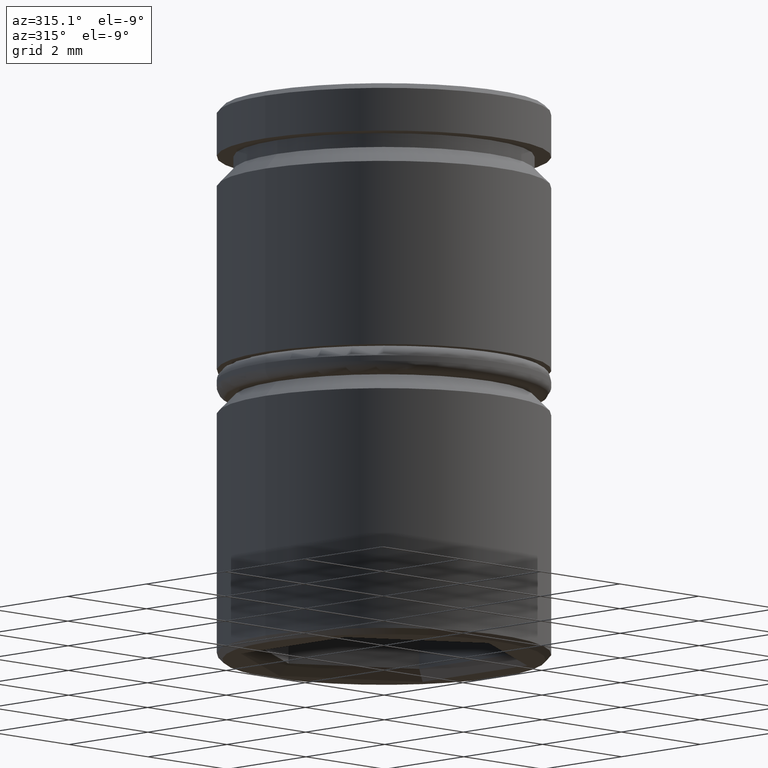
[diagram: clean part render]
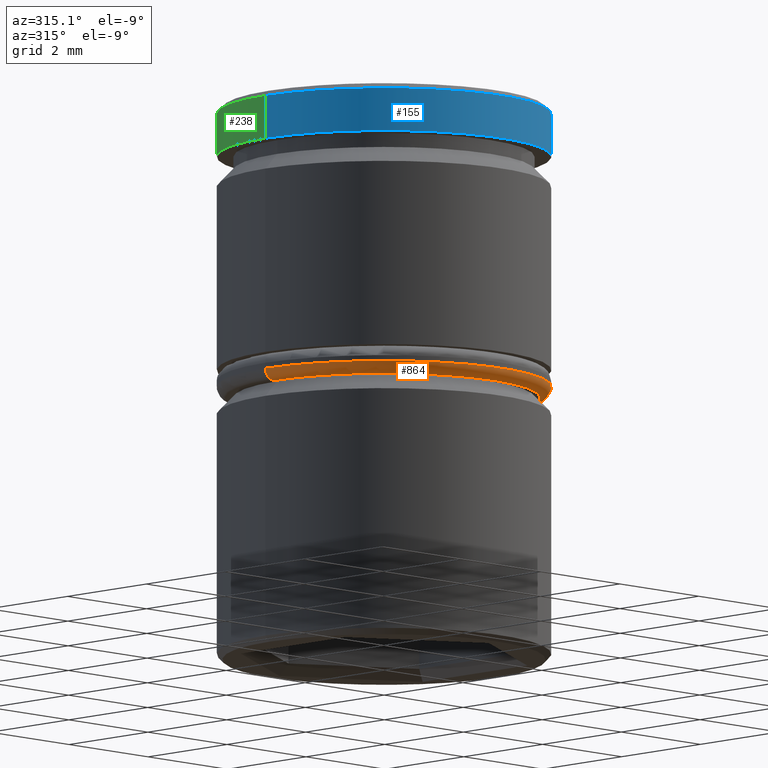
[diagram: same view with three faces highlighted in distinct colors, each labeled with its STEP entity id]
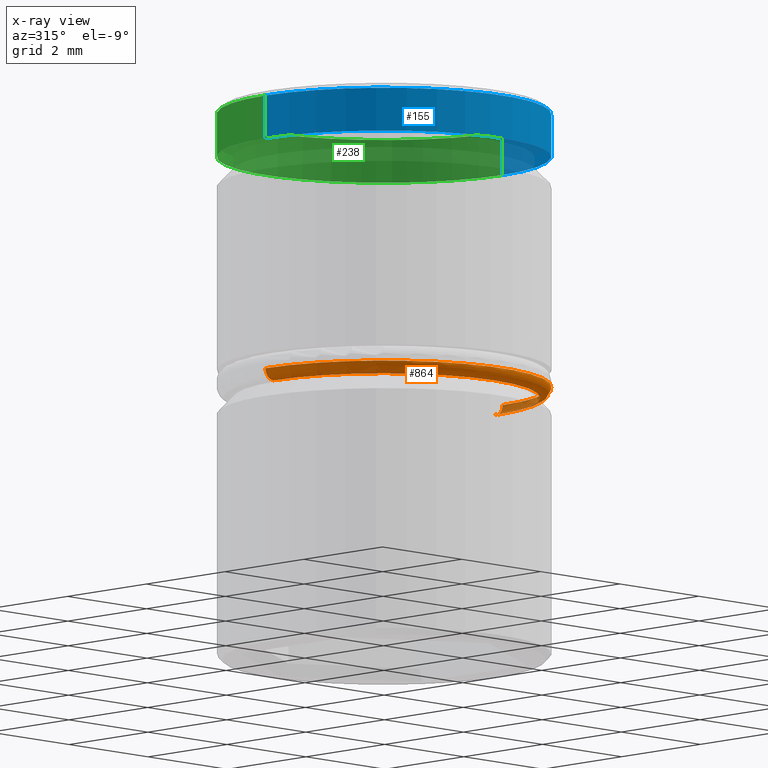
[diagram: x-ray of the same camera — body ghosted, the three highlighted faces saturated]
A machine part, auxiliary view with three faces highlighted in distinct colors.
The next image is the same camera in x-ray (body ghosted, the three faces saturated) — at least one of them is partly hidden behind the body in this view.
Their STEP definitions:

[orange] entity #864 — the highlighted toroidal blend (fillet) surface has major radius 2.8 mm and minor (blend) radius 0.2 mm.
#68 = ORIENTED_EDGE ( 'NONE', *, *, #758, .F. ) ;
#72 = DIRECTION ( 'NONE',  ( 1.000000000000000000, 0.000000000000000000, 0.000000000000000000 ) ) ;
#84 = AXIS2_PLACEMENT_3D ( 'NONE', #880, #149, #1154 ) ;
#88 = CARTESIAN_POINT ( 'NONE',  ( 0.000000000000000000, 0.000000000000000000, -5.049999999999998934 ) ) ;
#149 = DIRECTION ( 'NONE',  ( 0.000000000000000000, -1.000000000000000000, 0.000000000000000000 ) ) ;
#154 = ORIENTED_EDGE ( 'NONE', *, *, #741, .T. ) ;
#160 = TOROIDAL_SURFACE ( 'NONE', #285, 2.800000000000000266, 0.2000000000000000111 ) ;
#185 = EDGE_CURVE ( 'NONE', #859, #1107, #526, .T. ) ;
#211 = CARTESIAN_POINT ( 'NONE',  ( -2.800000000000000266, 3.429011037612589276E-16, -5.049999999999998934 ) ) ;
#248 = FACE_OUTER_BOUND ( 'NONE', #311, .T. ) ;
#249 = CARTESIAN_POINT ( 'NONE',  ( -2.800000000000000266, 3.551475717527324325E-16, -5.249999999999998224 ) ) ;
#260 = AXIS2_PLACEMENT_3D ( 'NONE', #272, #1081, #72 ) ;
#272 = CARTESIAN_POINT ( 'NONE',  ( 0.000000000000000000, 0.000000000000000000, -5.049999999999998934 ) ) ;
#285 = AXIS2_PLACEMENT_3D ( 'NONE', #88, #294, #897 ) ;
#294 = DIRECTION ( 'NONE',  ( 0.000000000000000000, 0.000000000000000000, 1.000000000000000000 ) ) ;
#311 = EDGE_LOOP ( 'NONE', ( #1024, #68, #154, #399 ) ) ;
#317 = CIRCLE ( 'NONE', #84, 0.1999999999999996503 ) ;
#336 = CIRCLE ( 'NONE', #993, 0.2000000000000000944 ) ;
#399 = ORIENTED_EDGE ( 'NONE', *, *, #185, .F. ) ;
#434 = CARTESIAN_POINT ( 'NONE',  ( 0.000000000000000000, 0.000000000000000000, -5.249999999999998224 ) ) ;
#441 = DIRECTION ( 'NONE',  ( -0.000000000000000000, -0.000000000000000000, -1.000000000000000000 ) ) ;
#496 = VERTEX_POINT ( 'NONE', #249 ) ;
#511 = AXIS2_PLACEMENT_3D ( 'NONE', #434, #441, #777 ) ;
#521 = CARTESIAN_POINT ( 'NONE',  ( 2.800000000000000266, 0.000000000000000000, -5.249999999999998224 ) ) ;
#526 = CIRCLE ( 'NONE', #260, 3.000000000000000444 ) ;
#601 = DIRECTION ( 'NONE',  ( 1.224646799147353207E-16, 1.000000000000000000, -0.000000000000000000 ) ) ;
#741 = EDGE_CURVE ( 'NONE', #1113, #1107, #317, .T. ) ;
#758 = EDGE_CURVE ( 'NONE', #1113, #496, #785, .T. ) ;
#777 = DIRECTION ( 'NONE',  ( 1.000000000000000000, 0.000000000000000000, 0.000000000000000000 ) ) ;
#785 = CIRCLE ( 'NONE', #511, 2.800000000000000266 ) ;
#803 = CARTESIAN_POINT ( 'NONE',  ( 3.000000000000000444, 0.000000000000000000, -5.049999999999998934 ) ) ;
#859 = VERTEX_POINT ( 'NONE', #1136 ) ;
#864 = ADVANCED_FACE ( 'NONE', ( #248 ), #160, .T. ) ;
#880 = CARTESIAN_POINT ( 'NONE',  ( 2.800000000000000266, 0.000000000000000000, -5.049999999999998934 ) ) ;
#897 = DIRECTION ( 'NONE',  ( 1.000000000000000000, 0.000000000000000000, 0.000000000000000000 ) ) ;
#942 = DIRECTION ( 'NONE',  ( -1.000000000000000000, 1.224646799147353207E-16, 0.000000000000000000 ) ) ;
#993 = AXIS2_PLACEMENT_3D ( 'NONE', #211, #601, #942 ) ;
#1024 = ORIENTED_EDGE ( 'NONE', *, *, #1130, .F. ) ;
#1081 = DIRECTION ( 'NONE',  ( 0.000000000000000000, 0.000000000000000000, 1.000000000000000000 ) ) ;
#1107 = VERTEX_POINT ( 'NONE', #803 ) ;
#1113 = VERTEX_POINT ( 'NONE', #521 ) ;
#1130 = EDGE_CURVE ( 'NONE', #496, #859, #336, .T. ) ;
#1136 = CARTESIAN_POINT ( 'NONE',  ( -3.000000000000000444, 3.673940397442060361E-16, -5.049999999999998934 ) ) ;
#1154 = DIRECTION ( 'NONE',  ( 0.000000000000000000, 0.000000000000000000, -1.000000000000000000 ) ) ;

[blue] entity #155 — the highlighted cylindrical surface (partial cylindrical patch) has radius 3 mm, axis along (-0, -0, 1).
#33 = EDGE_CURVE ( 'NONE', #671, #353, #891, .T. ) ;
#52 = EDGE_CURVE ( 'NONE', #713, #353, #1143, .T. ) ;
#66 = CYLINDRICAL_SURFACE ( 'NONE', #882, 3.000000000000000000 ) ;
#105 = LINE ( 'NONE', #835, #868 ) ;
#155 = ADVANCED_FACE ( 'NONE', ( #438 ), #66, .T. ) ;
#257 = DIRECTION ( 'NONE',  ( 1.000000000000000000, 0.000000000000000000, 0.000000000000000000 ) ) ;
#274 = DIRECTION ( 'NONE',  ( 0.000000000000000000, 0.000000000000000000, -1.000000000000000000 ) ) ;
#279 = CARTESIAN_POINT ( 'NONE',  ( 0.000000000000000000, 0.000000000000000000, -0.09999999999999896472 ) ) ;
#307 = EDGE_CURVE ( 'NONE', #401, #713, #105, .T. ) ;
#321 = CARTESIAN_POINT ( 'NONE',  ( 3.000000000000000000, 0.000000000000000000, -0.09999999999999896472 ) ) ;
#324 = CARTESIAN_POINT ( 'NONE',  ( -3.000000000000000000, 3.673940397442059868E-16, 0.000000000000000000 ) ) ;
#353 = VERTEX_POINT ( 'NONE', #778 ) ;
#401 = VERTEX_POINT ( 'NONE', #426 ) ;
#417 = CARTESIAN_POINT ( 'NONE',  ( -3.000000000000000000, 3.673940397442059868E-16, -0.8749999999999998890 ) ) ;
#426 = CARTESIAN_POINT ( 'NONE',  ( 3.000000000000000000, 0.000000000000000000, -0.8749999999999998890 ) ) ;
#438 = FACE_OUTER_BOUND ( 'NONE', #669, .T. ) ;
#481 = ORIENTED_EDGE ( 'NONE', *, *, #822, .T. ) ;
#540 = CARTESIAN_POINT ( 'NONE',  ( 0.000000000000000000, 0.000000000000000000, 0.000000000000000000 ) ) ;
#626 = DIRECTION ( 'NONE',  ( -0.000000000000000000, -0.000000000000000000, 1.000000000000000000 ) ) ;
#669 = EDGE_LOOP ( 'NONE', ( #964, #481, #947, #860 ) ) ;
#671 = VERTEX_POINT ( 'NONE', #417 ) ;
#676 = VECTOR ( 'NONE', #1044, 1000.000000000000000 ) ;
#713 = VERTEX_POINT ( 'NONE', #321 ) ;
#731 = AXIS2_PLACEMENT_3D ( 'NONE', #279, #274, #816 ) ;
#744 = DIRECTION ( 'NONE',  ( -0.000000000000000000, -0.000000000000000000, 1.000000000000000000 ) ) ;
#778 = CARTESIAN_POINT ( 'NONE',  ( -3.000000000000000000, 3.673940397442059868E-16, -0.09999999999999896472 ) ) ;
#816 = DIRECTION ( 'NONE',  ( 1.000000000000000000, 0.000000000000000000, 0.000000000000000000 ) ) ;
#822 = EDGE_CURVE ( 'NONE', #671, #401, #918, .T. ) ;
#835 = CARTESIAN_POINT ( 'NONE',  ( 3.000000000000000000, 0.000000000000000000, 0.000000000000000000 ) ) ;
#860 = ORIENTED_EDGE ( 'NONE', *, *, #52, .T. ) ;
#868 = VECTOR ( 'NONE', #744, 1000.000000000000000 ) ;
#882 = AXIS2_PLACEMENT_3D ( 'NONE', #540, #899, #257 ) ;
#891 = LINE ( 'NONE', #324, #676 ) ;
#899 = DIRECTION ( 'NONE',  ( -0.000000000000000000, -0.000000000000000000, 1.000000000000000000 ) ) ;
#918 = CIRCLE ( 'NONE', #1089, 3.000000000000000000 ) ;
#947 = ORIENTED_EDGE ( 'NONE', *, *, #307, .T. ) ;
#964 = ORIENTED_EDGE ( 'NONE', *, *, #33, .F. ) ;
#977 = DIRECTION ( 'NONE',  ( 1.000000000000000000, 0.000000000000000000, 0.000000000000000000 ) ) ;
#1044 = DIRECTION ( 'NONE',  ( -0.000000000000000000, -0.000000000000000000, 1.000000000000000000 ) ) ;
#1064 = CARTESIAN_POINT ( 'NONE',  ( 0.000000000000000000, 0.000000000000000000, -0.8749999999999998890 ) ) ;
#1089 = AXIS2_PLACEMENT_3D ( 'NONE', #1064, #626, #977 ) ;
#1143 = CIRCLE ( 'NONE', #731, 3.000000000000000000 ) ;

[green] entity #238 — the highlighted cylindrical surface (partial cylindrical patch) has radius 3 mm, axis along (-0, -0, 1).
#29 = CIRCLE ( 'NONE', #696, 3.000000000000000000 ) ;
#33 = EDGE_CURVE ( 'NONE', #671, #353, #891, .T. ) ;
#105 = LINE ( 'NONE', #835, #868 ) ;
#213 = ORIENTED_EDGE ( 'NONE', *, *, #307, .F. ) ;
#238 = ADVANCED_FACE ( 'NONE', ( #974 ), #339, .T. ) ;
#307 = EDGE_CURVE ( 'NONE', #401, #713, #105, .T. ) ;
#320 = ORIENTED_EDGE ( 'NONE', *, *, #33, .T. ) ;
#321 = CARTESIAN_POINT ( 'NONE',  ( 3.000000000000000000, 0.000000000000000000, -0.09999999999999896472 ) ) ;
#324 = CARTESIAN_POINT ( 'NONE',  ( -3.000000000000000000, 3.673940397442059868E-16, 0.000000000000000000 ) ) ;
#339 = CYLINDRICAL_SURFACE ( 'NONE', #1047, 3.000000000000000000 ) ;
#353 = VERTEX_POINT ( 'NONE', #778 ) ;
#401 = VERTEX_POINT ( 'NONE', #426 ) ;
#417 = CARTESIAN_POINT ( 'NONE',  ( -3.000000000000000000, 3.673940397442059868E-16, -0.8749999999999998890 ) ) ;
#426 = CARTESIAN_POINT ( 'NONE',  ( 3.000000000000000000, 0.000000000000000000, -0.8749999999999998890 ) ) ;
#473 = CIRCLE ( 'NONE', #852, 3.000000000000000000 ) ;
#584 = ORIENTED_EDGE ( 'NONE', *, *, #1090, .T. ) ;
#615 = DIRECTION ( 'NONE',  ( 0.000000000000000000, 0.000000000000000000, -1.000000000000000000 ) ) ;
#628 = DIRECTION ( 'NONE',  ( 1.000000000000000000, 0.000000000000000000, 0.000000000000000000 ) ) ;
#671 = VERTEX_POINT ( 'NONE', #417 ) ;
#676 = VECTOR ( 'NONE', #1044, 1000.000000000000000 ) ;
#696 = AXIS2_PLACEMENT_3D ( 'NONE', #817, #903, #1178 ) ;
#713 = VERTEX_POINT ( 'NONE', #321 ) ;
#744 = DIRECTION ( 'NONE',  ( -0.000000000000000000, -0.000000000000000000, 1.000000000000000000 ) ) ;
#778 = CARTESIAN_POINT ( 'NONE',  ( -3.000000000000000000, 3.673940397442059868E-16, -0.09999999999999896472 ) ) ;
#817 = CARTESIAN_POINT ( 'NONE',  ( 0.000000000000000000, 0.000000000000000000, -0.8749999999999998890 ) ) ;
#835 = CARTESIAN_POINT ( 'NONE',  ( 3.000000000000000000, 0.000000000000000000, 0.000000000000000000 ) ) ;
#852 = AXIS2_PLACEMENT_3D ( 'NONE', #967, #615, #893 ) ;
#868 = VECTOR ( 'NONE', #744, 1000.000000000000000 ) ;
#891 = LINE ( 'NONE', #324, #676 ) ;
#893 = DIRECTION ( 'NONE',  ( 1.000000000000000000, 0.000000000000000000, 0.000000000000000000 ) ) ;
#896 = EDGE_CURVE ( 'NONE', #401, #671, #29, .T. ) ;
#903 = DIRECTION ( 'NONE',  ( -0.000000000000000000, -0.000000000000000000, 1.000000000000000000 ) ) ;
#967 = CARTESIAN_POINT ( 'NONE',  ( 0.000000000000000000, 0.000000000000000000, -0.09999999999999896472 ) ) ;
#974 = FACE_OUTER_BOUND ( 'NONE', #976, .T. ) ;
#976 = EDGE_LOOP ( 'NONE', ( #1037, #320, #584, #213 ) ) ;
#1037 = ORIENTED_EDGE ( 'NONE', *, *, #896, .T. ) ;
#1044 = DIRECTION ( 'NONE',  ( -0.000000000000000000, -0.000000000000000000, 1.000000000000000000 ) ) ;
#1047 = AXIS2_PLACEMENT_3D ( 'NONE', #1057, #1150, #628 ) ;
#1057 = CARTESIAN_POINT ( 'NONE',  ( 0.000000000000000000, 0.000000000000000000, 0.000000000000000000 ) ) ;
#1090 = EDGE_CURVE ( 'NONE', #353, #713, #473, .T. ) ;
#1150 = DIRECTION ( 'NONE',  ( -0.000000000000000000, -0.000000000000000000, 1.000000000000000000 ) ) ;
#1178 = DIRECTION ( 'NONE',  ( 1.000000000000000000, 0.000000000000000000, 0.000000000000000000 ) ) ;